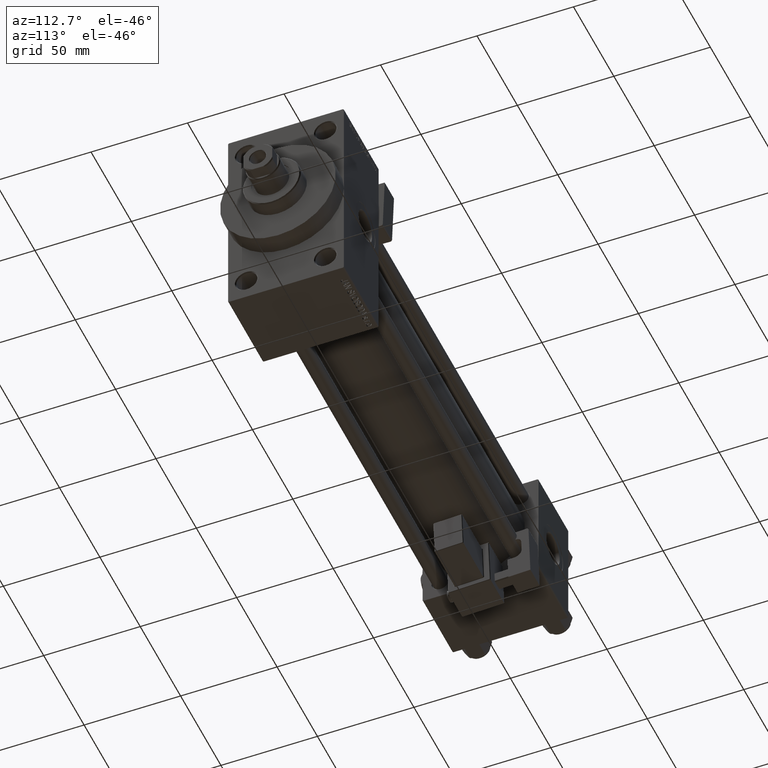
[diagram: clean part render]
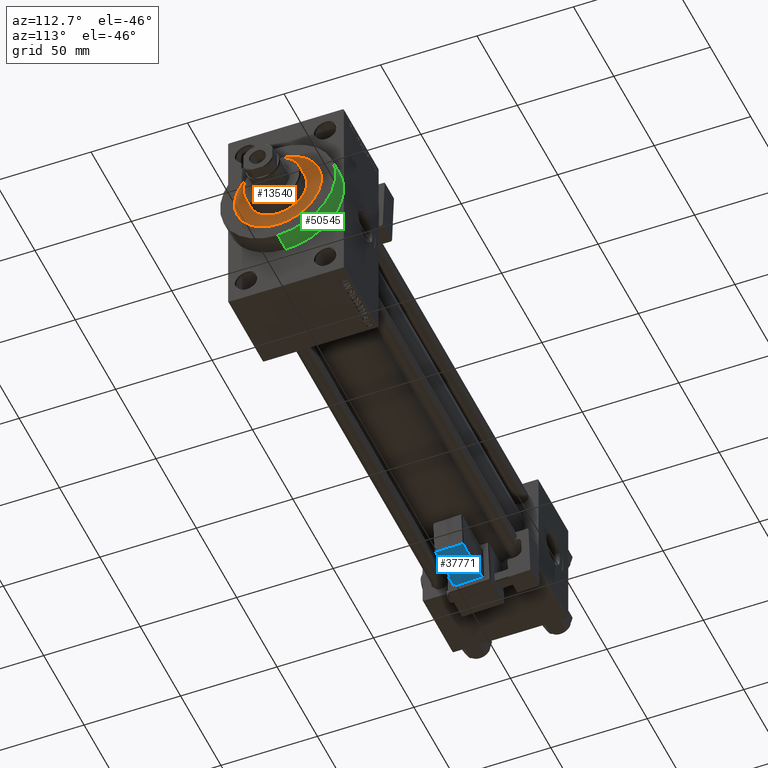
[diagram: same view with three faces highlighted in distinct colors, each labeled with its STEP entity id]
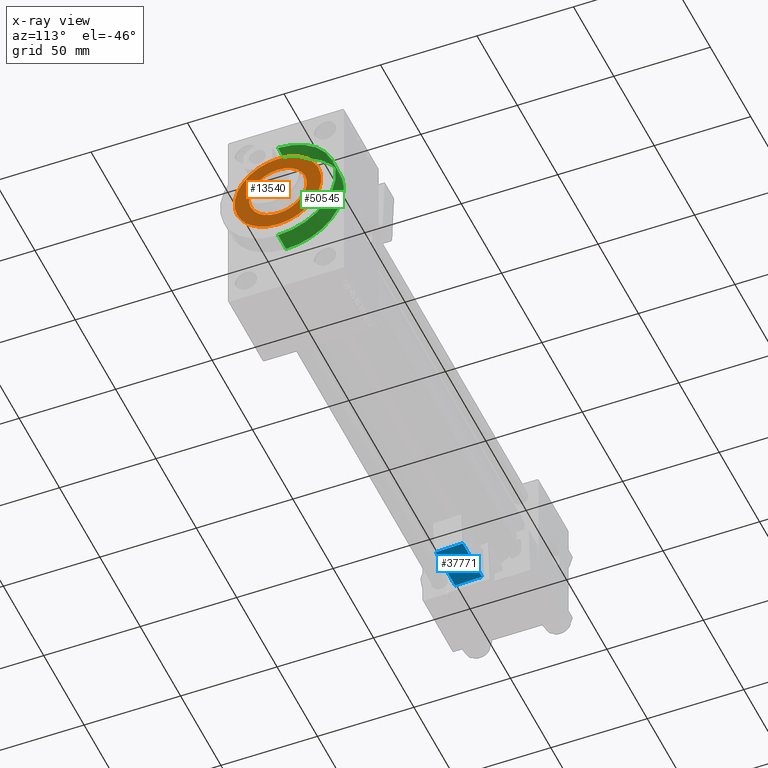
[diagram: x-ray of the same camera — body ghosted, the three highlighted faces saturated]
A machine part, auxiliary view with three faces highlighted in distinct colors.
The next image is the same camera in x-ray (body ghosted, the three faces saturated) — at least one of them is partly hidden behind the body in this view.
Their STEP definitions:

[orange] entity #13540 — the highlighted planar face has unit normal (1, -0, -0).
#1294 = AXIS2_PLACEMENT_3D ( 'NONE', #35264, #51144, #43324 ) ;
#3313 = ORIENTED_EDGE ( 'NONE', *, *, #38693, .F. ) ;
#4182 = CARTESIAN_POINT ( 'NONE',  ( 15.00000000000000000, 1.836970198721029589E-15, 43.25999999999999801 ) ) ;
#8884 = DIRECTION ( 'NONE',  ( 0.000000000000000000, 0.000000000000000000, 1.000000000000000000 ) ) ;
#9908 = FACE_BOUND ( 'NONE', #14060, .T. ) ;
#10123 = AXIS2_PLACEMENT_3D ( 'NONE', #17404, #44983, #44732 ) ;
#11393 = AXIS2_PLACEMENT_3D ( 'NONE', #21453, #12603, #13119 ) ;
#12023 = AXIS2_PLACEMENT_3D ( 'NONE', #27492, #35304, #23600 ) ;
#12603 = DIRECTION ( 'NONE',  ( 0.000000000000000000, 0.000000000000000000, 1.000000000000000000 ) ) ;
#12998 = ORIENTED_EDGE ( 'NONE', *, *, #36260, .F. ) ;
#13119 = DIRECTION ( 'NONE',  ( 1.000000000000000000, 0.000000000000000000, 0.000000000000000000 ) ) ;
#13540 = ADVANCED_FACE ( 'NONE', ( #9908, #48449 ), #44531, .T. ) ;
#13553 = CARTESIAN_POINT ( 'NONE',  ( 0.000000000000000000, 0.000000000000000000, 43.25999999999999801 ) ) ;
#14060 = EDGE_LOOP ( 'NONE', ( #3313, #12998 ) ) ;
#16798 = VERTEX_POINT ( 'NONE', #44505 ) ;
#17404 = CARTESIAN_POINT ( 'NONE',  ( 0.000000000000000000, 0.000000000000000000, 43.25999999999999801 ) ) ;
#17458 = CARTESIAN_POINT ( 'NONE',  ( 22.50000000000000355, 2.755455298081545172E-15, 43.25999999999999801 ) ) ;
#18680 = ORIENTED_EDGE ( 'NONE', *, *, #22094, .T. ) ;
#20815 = VERTEX_POINT ( 'NONE', #17458 ) ;
#21453 = CARTESIAN_POINT ( 'NONE',  ( 0.000000000000000000, 0.000000000000000000, 43.25999999999999801 ) ) ;
#21768 = ORIENTED_EDGE ( 'NONE', *, *, #42073, .T. ) ;
#22094 = EDGE_CURVE ( 'NONE', #20815, #16798, #22596, .T. ) ;
#22596 = CIRCLE ( 'NONE', #10123, 22.50000000000000355 ) ;
#23600 = DIRECTION ( 'NONE',  ( 1.000000000000000000, 0.000000000000000000, 0.000000000000000000 ) ) ;
#25581 = VERTEX_POINT ( 'NONE', #33689 ) ;
#27492 = CARTESIAN_POINT ( 'NONE',  ( 0.000000000000000000, 0.000000000000000000, 43.25999999999999801 ) ) ;
#28701 = CIRCLE ( 'NONE', #1294, 15.00000000000000000 ) ;
#28938 = VERTEX_POINT ( 'NONE', #4182 ) ;
#33689 = CARTESIAN_POINT ( 'NONE',  ( -15.00000000000000000, 0.000000000000000000, 43.25999999999999801 ) ) ;
#35264 = CARTESIAN_POINT ( 'NONE',  ( 0.000000000000000000, 0.000000000000000000, 43.25999999999999801 ) ) ;
#35304 = DIRECTION ( 'NONE',  ( 0.000000000000000000, 0.000000000000000000, 1.000000000000000000 ) ) ;
#36260 = EDGE_CURVE ( 'NONE', #28938, #25581, #38565, .T. ) ;
#36979 = DIRECTION ( 'NONE',  ( 1.000000000000000000, 0.000000000000000000, -0.000000000000000000 ) ) ;
#38565 = CIRCLE ( 'NONE', #12023, 15.00000000000000000 ) ;
#38693 = EDGE_CURVE ( 'NONE', #25581, #28938, #28701, .T. ) ;
#42073 = EDGE_CURVE ( 'NONE', #16798, #20815, #48821, .T. ) ;
#43324 = DIRECTION ( 'NONE',  ( 1.000000000000000000, 0.000000000000000000, 0.000000000000000000 ) ) ;
#44505 = CARTESIAN_POINT ( 'NONE',  ( -22.50000000000000355, 0.000000000000000000, 43.25999999999999801 ) ) ;
#44531 = PLANE ( 'NONE',  #50686 ) ;
#44732 = DIRECTION ( 'NONE',  ( 1.000000000000000000, 0.000000000000000000, 0.000000000000000000 ) ) ;
#44983 = DIRECTION ( 'NONE',  ( 0.000000000000000000, 0.000000000000000000, 1.000000000000000000 ) ) ;
#45279 = EDGE_LOOP ( 'NONE', ( #21768, #18680 ) ) ;
#48449 = FACE_OUTER_BOUND ( 'NONE', #45279, .T. ) ;
#48821 = CIRCLE ( 'NONE', #11393, 22.50000000000000355 ) ;
#50686 = AXIS2_PLACEMENT_3D ( 'NONE', #13553, #8884, #36979 ) ;
#51144 = DIRECTION ( 'NONE',  ( 0.000000000000000000, 0.000000000000000000, 1.000000000000000000 ) ) ;

[blue] entity #37771 — the highlighted planar face has unit normal (-0, -0.0353, 0.9994).
#3165 = VERTEX_POINT ( 'NONE', #31988 ) ;
#4337 = VECTOR ( 'NONE', #47769, 1000.000000000000000 ) ;
#5939 = CARTESIAN_POINT ( 'NONE',  ( 33.75000000000000000, -31.74999999999999289, 2.000000000000008438 ) ) ;
#6852 = DIRECTION ( 'NONE',  ( 1.000000000000000000, -0.000000000000000000, 1.334402673828313339E-16 ) ) ;
#7023 = ORIENTED_EDGE ( 'NONE', *, *, #19243, .T. ) ;
#8891 = DIRECTION ( 'NONE',  ( -1.334402673828313339E-16, -1.156482317317871725E-16, 1.000000000000000000 ) ) ;
#13850 = VERTEX_POINT ( 'NONE', #22067 ) ;
#14497 = LINE ( 'NONE', #5939, #43785 ) ;
#14809 = ORIENTED_EDGE ( 'NONE', *, *, #19053, .T. ) ;
#16337 = ORIENTED_EDGE ( 'NONE', *, *, #40945, .T. ) ;
#18859 = VERTEX_POINT ( 'NONE', #29059 ) ;
#19053 = EDGE_CURVE ( 'NONE', #13850, #30187, #31366, .T. ) ;
#19243 = EDGE_CURVE ( 'NONE', #30187, #18859, #34684, .T. ) ;
#20884 = EDGE_CURVE ( 'NONE', #18859, #3165, #34072, .T. ) ;
#21758 = VECTOR ( 'NONE', #34577, 1000.000000000000000 ) ;
#22067 = CARTESIAN_POINT ( 'NONE',  ( 9.250000000000005329, -31.74999999999999289, 2.000000000000005329 ) ) ;
#22068 = DIRECTION ( 'NONE',  ( -1.000000000000000000, 0.000000000000000000, -1.334402673828313339E-16 ) ) ;
#25865 = CARTESIAN_POINT ( 'NONE',  ( 33.75000000000000000, -17.74999999999999645, 2.000000000000010214 ) ) ;
#28398 = FACE_OUTER_BOUND ( 'NONE', #33627, .T. ) ;
#29059 = CARTESIAN_POINT ( 'NONE',  ( 33.25000000000000000, -17.74999999999999645, 2.000000000000010214 ) ) ;
#30187 = VERTEX_POINT ( 'NONE', #45296 ) ;
#30668 = CARTESIAN_POINT ( 'NONE',  ( 33.25000000000000000, -32.24999999999999289, 2.000000000000008438 ) ) ;
#31366 = LINE ( 'NONE', #47257, #4337 ) ;
#31988 = CARTESIAN_POINT ( 'NONE',  ( 33.25000000000000000, -31.74999999999999289, 2.000000000000008438 ) ) ;
#32824 = CARTESIAN_POINT ( 'NONE',  ( 33.75000000000000000, -17.24999999999999289, 2.000000000000010214 ) ) ;
#33627 = EDGE_LOOP ( 'NONE', ( #43961, #16337, #14809, #7023 ) ) ;
#34072 = LINE ( 'NONE', #30668, #21758 ) ;
#34577 = DIRECTION ( 'NONE',  ( 5.473822126268816683E-48, -1.000000000000000000, -1.156482317317871725E-16 ) ) ;
#34684 = LINE ( 'NONE', #25865, #46707 ) ;
#36144 = AXIS2_PLACEMENT_3D ( 'NONE', #32824, #8891, #40634 ) ;
#37771 = ADVANCED_FACE ( 'NONE', ( #28398 ), #44797, .F. ) ;
#40634 = DIRECTION ( 'NONE',  ( 1.000000000000000000, 0.000000000000000000, 1.334402673828313339E-16 ) ) ;
#40945 = EDGE_CURVE ( 'NONE', #3165, #13850, #14497, .T. ) ;
#43785 = VECTOR ( 'NONE', #22068, 1000.000000000000000 ) ;
#43961 = ORIENTED_EDGE ( 'NONE', *, *, #20884, .T. ) ;
#44797 = PLANE ( 'NONE',  #36144 ) ;
#45296 = CARTESIAN_POINT ( 'NONE',  ( 9.250000000000005329, -17.74999999999999645, 2.000000000000006661 ) ) ;
#46707 = VECTOR ( 'NONE', #6852, 1000.000000000000000 ) ;
#47257 = CARTESIAN_POINT ( 'NONE',  ( 9.250000000000005329, -17.24999999999999289, 2.000000000000007105 ) ) ;
#47769 = DIRECTION ( 'NONE',  ( -1.543213096464132036E-32, 1.000000000000000000, 1.156482317317871725E-16 ) ) ;

[green] entity #50545 — the highlighted cylindrical surface (partial cylindrical patch) has radius 30 mm, axis along (-1, -0, -0).
#129 = EDGE_CURVE ( 'NONE', #39924, #34206, #46085, .T. ) ;
#2560 = ORIENTED_EDGE ( 'NONE', *, *, #2725, .F. ) ;
#2725 = EDGE_CURVE ( 'NONE', #15687, #33289, #45401, .T. ) ;
#2899 = FACE_OUTER_BOUND ( 'NONE', #49099, .T. ) ;
#4953 = DIRECTION ( 'NONE',  ( 0.000000000000000000, 0.000000000000000000, -1.000000000000000000 ) ) ;
#5798 = EDGE_CURVE ( 'NONE', #33289, #34206, #35474, .T. ) ;
#6345 = AXIS2_PLACEMENT_3D ( 'NONE', #44642, #33945, #49070 ) ;
#6500 = CARTESIAN_POINT ( 'NONE',  ( 278.0000000000000000, 30.00000000000000000, 0.000000000000000000 ) ) ;
#6560 = VECTOR ( 'NONE', #24616, 1000.000000000000000 ) ;
#7113 = CARTESIAN_POINT ( 'NONE',  ( 288.0000000000000568, 0.000000000000000000, 30.00000000000000000 ) ) ;
#7694 = CIRCLE ( 'NONE', #34234, 30.00000000000000000 ) ;
#9158 = CARTESIAN_POINT ( 'NONE',  ( 288.0000000000000568, 3.673940397442059178E-15, -30.00000000000000000 ) ) ;
#9984 = CARTESIAN_POINT ( 'NONE',  ( 278.0000000000000000, 3.673940397442059178E-15, -30.00000000000000000 ) ) ;
#12046 = EDGE_CURVE ( 'NONE', #15687, #33329, #39452, .T. ) ;
#14865 = DIRECTION ( 'NONE',  ( -1.000000000000000000, -0.000000000000000000, -0.000000000000000000 ) ) ;
#15609 = ORIENTED_EDGE ( 'NONE', *, *, #12046, .T. ) ;
#15687 = VERTEX_POINT ( 'NONE', #9158 ) ;
#17341 = DIRECTION ( 'NONE',  ( 0.000000000000000000, 0.000000000000000000, -1.000000000000000000 ) ) ;
#20758 = AXIS2_PLACEMENT_3D ( 'NONE', #42453, #14865, #29980 ) ;
#21446 = VECTOR ( 'NONE', #30272, 1000.000000000000000 ) ;
#22444 = ORIENTED_EDGE ( 'NONE', *, *, #31848, .T. ) ;
#23652 = AXIS2_PLACEMENT_3D ( 'NONE', #28357, #31489, #4953 ) ;
#24616 = DIRECTION ( 'NONE',  ( -1.000000000000000000, -0.000000000000000000, -0.000000000000000000 ) ) ;
#25465 = ORIENTED_EDGE ( 'NONE', *, *, #5798, .F. ) ;
#28268 = DIRECTION ( 'NONE',  ( 1.000000000000000000, 0.000000000000000000, 0.000000000000000000 ) ) ;
#28357 = CARTESIAN_POINT ( 'NONE',  ( 278.0000000000000000, 0.000000000000000000, 0.000000000000000000 ) ) ;
#29980 = DIRECTION ( 'NONE',  ( 0.000000000000000000, 0.000000000000000000, 1.000000000000000000 ) ) ;
#30272 = DIRECTION ( 'NONE',  ( -1.000000000000000000, -0.000000000000000000, -0.000000000000000000 ) ) ;
#30883 = ORIENTED_EDGE ( 'NONE', *, *, #129, .T. ) ;
#31489 = DIRECTION ( 'NONE',  ( 1.000000000000000000, 0.000000000000000000, 0.000000000000000000 ) ) ;
#31848 = EDGE_CURVE ( 'NONE', #33329, #39924, #7694, .T. ) ;
#33289 = VERTEX_POINT ( 'NONE', #48533 ) ;
#33329 = VERTEX_POINT ( 'NONE', #9984 ) ;
#33635 = CYLINDRICAL_SURFACE ( 'NONE', #20758, 30.00000000000000000 ) ;
#33945 = DIRECTION ( 'NONE',  ( 1.000000000000000000, 0.000000000000000000, 0.000000000000000000 ) ) ;
#34206 = VERTEX_POINT ( 'NONE', #51486 ) ;
#34234 = AXIS2_PLACEMENT_3D ( 'NONE', #44667, #28268, #17341 ) ;
#35474 = LINE ( 'NONE', #7113, #21446 ) ;
#39452 = LINE ( 'NONE', #39969, #6560 ) ;
#39924 = VERTEX_POINT ( 'NONE', #6500 ) ;
#39969 = CARTESIAN_POINT ( 'NONE',  ( 288.0000000000000568, 3.673940397442059178E-15, -30.00000000000000000 ) ) ;
#42453 = CARTESIAN_POINT ( 'NONE',  ( 288.0000000000000568, 0.000000000000000000, 0.000000000000000000 ) ) ;
#44642 = CARTESIAN_POINT ( 'NONE',  ( 288.0000000000000568, 0.000000000000000000, 0.000000000000000000 ) ) ;
#44667 = CARTESIAN_POINT ( 'NONE',  ( 278.0000000000000000, 0.000000000000000000, 0.000000000000000000 ) ) ;
#45401 = CIRCLE ( 'NONE', #6345, 30.00000000000000000 ) ;
#46085 = CIRCLE ( 'NONE', #23652, 30.00000000000000000 ) ;
#48533 = CARTESIAN_POINT ( 'NONE',  ( 288.0000000000000568, 0.000000000000000000, 30.00000000000000000 ) ) ;
#49070 = DIRECTION ( 'NONE',  ( 0.000000000000000000, 0.000000000000000000, -1.000000000000000000 ) ) ;
#49099 = EDGE_LOOP ( 'NONE', ( #2560, #15609, #22444, #30883, #25465 ) ) ;
#50545 = ADVANCED_FACE ( 'NONE', ( #2899 ), #33635, .T. ) ;
#51486 = CARTESIAN_POINT ( 'NONE',  ( 278.0000000000000000, 0.000000000000000000, 30.00000000000000000 ) ) ;